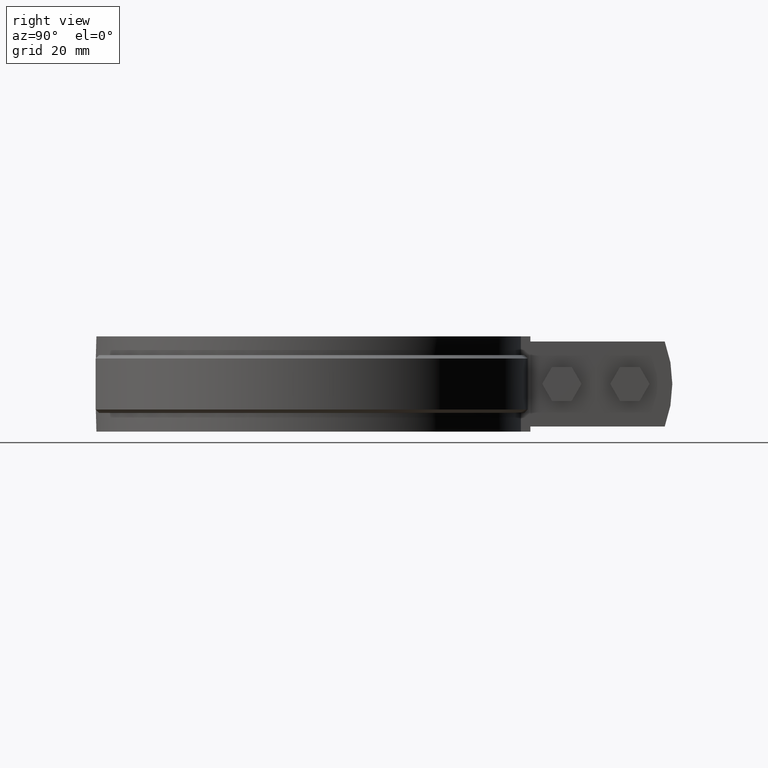
[diagram: clean part render]
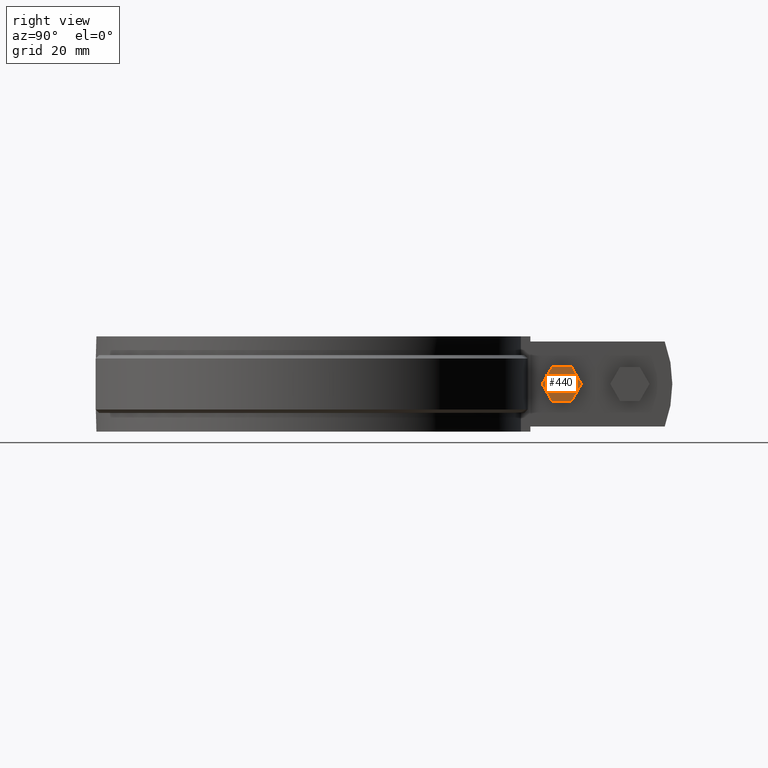
[diagram: same view with one face highlighted and labeled with its STEP entity id]
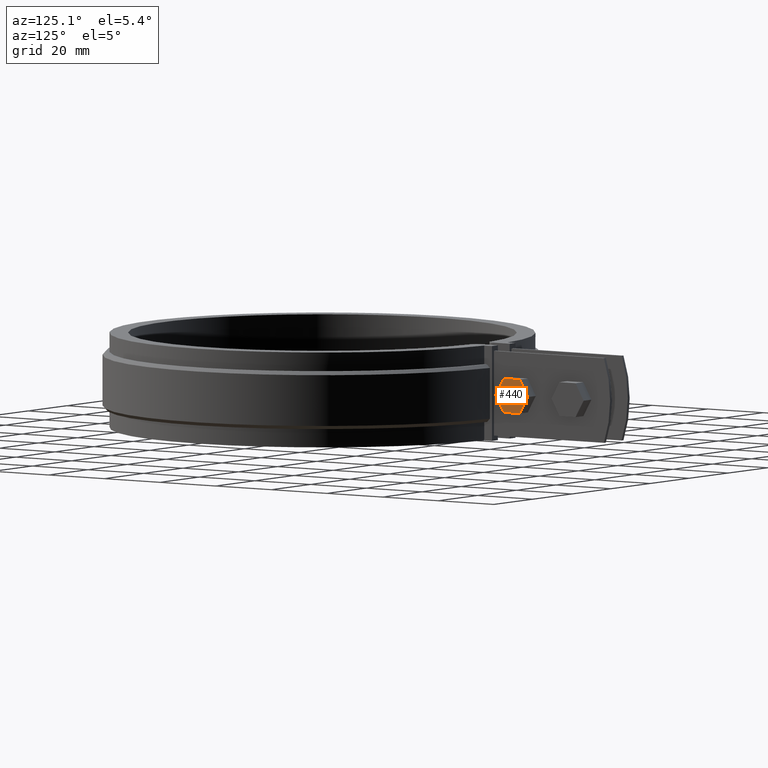
[diagram: same view with one face highlighted and labeled with its STEP entity id]
A machine part, right view. The second image highlights one B-rep face of the part: STEP entity #440.
A second angle (auxiliary view) of the same face is appended — the face is thin or edge-on in the first view.
In plain terms, the highlighted planar face has unit normal (-1, -0, 0).
Its self-contained STEP definition (entity closure, byte-faithful):
#440 = ADVANCED_FACE( '', ( #774 ), #775, .F. );
#774 = FACE_OUTER_BOUND( '', #1736, .T. );
#775 = PLANE( '', #1737 );
#1736 = EDGE_LOOP( '', ( #3415, #3416, #3417, #3418, #3419, #3420 ) );
#1737 = AXIS2_PLACEMENT_3D( '', #3421, #3422, #3423 );
#3415 = ORIENTED_EDGE( '', *, *, #4223, .T. );
#3416 = ORIENTED_EDGE( '', *, *, #4226, .T. );
#3417 = ORIENTED_EDGE( '', *, *, #4228, .T. );
#3418 = ORIENTED_EDGE( '', *, *, #4229, .T. );
#3419 = ORIENTED_EDGE( '', *, *, #4230, .T. );
#3420 = ORIENTED_EDGE( '', *, *, #4231, .T. );
#3421 = CARTESIAN_POINT( '', ( 9.00000000000001, 65.7415719270026, -5.00000000000000 ) );
#3422 = DIRECTION( '', ( -1.00000000000000, -1.36254714880468E-107, 0.000000000000000 ) );
#3423 = DIRECTION( '', ( -1.36254714880468E-107, 1.00000000000000, 0.000000000000000 ) );
#4223 = EDGE_CURVE( '', #4938, #4936, #4939, .T. );
#4226 = EDGE_CURVE( '', #4936, #4941, #4943, .T. );
#4228 = EDGE_CURVE( '', #4941, #4946, #4947, .T. );
#4229 = EDGE_CURVE( '', #4946, #4948, #4949, .T. );
#4230 = EDGE_CURVE( '', #4948, #4950, #4951, .T. );
#4231 = EDGE_CURVE( '', #4950, #4938, #4952, .T. );
#4936 = VERTEX_POINT( '', #7648 );
#4938 = VERTEX_POINT( '', #7651 );
#4939 = LINE( '', #7652, #7653 );
#4941 = VERTEX_POINT( '', #7656 );
#4943 = LINE( '', #7659, #7660 );
#4946 = VERTEX_POINT( '', #7663 );
#4947 = LINE( '', #7664, #7665 );
#4948 = VERTEX_POINT( '', #7666 );
#4949 = LINE( '', #7667, #7668 );
#4950 = VERTEX_POINT( '', #7669 );
#4951 = LINE( '', #7670, #7671 );
#4952 = LINE( '', #7672, #7673 );
#7648 = CARTESIAN_POINT( '', ( 9.00000000000001, 77.2885773107951, -5.00000000000000 ) );
#7651 = CARTESIAN_POINT( '', ( 9.00000000000001, 71.5150746188989, -5.00000000000000 ) );
#7652 = CARTESIAN_POINT( '', ( 9.00000000000001, 71.5150746188989, -5.00000000000000 ) );
#7653 = VECTOR( '', #8459, 1000.00000000000 );
#7656 = CARTESIAN_POINT( '', ( 9.00000000000001, 80.1753286567433, -1.73472347597681E-015 ) );
#7659 = CARTESIAN_POINT( '', ( 9.00000000000001, 77.2885773107951, -5.00000000000000 ) );
#7660 = VECTOR( '', #8462, 1000.00000000000 );
#7663 = CARTESIAN_POINT( '', ( 9.00000000000001, 77.2885773107951, 5.00000000000000 ) );
#7664 = CARTESIAN_POINT( '', ( 9.00000000000001, 80.1753286567433, -2.08823687999215E-015 ) );
#7665 = VECTOR( '', #8466, 1000.00000000000 );
#7666 = CARTESIAN_POINT( '', ( 9.00000000000001, 71.5150746188989, 5.00000000000000 ) );
#7667 = CARTESIAN_POINT( '', ( 9.00000000000001, 77.2885773107951, 5.00000000000000 ) );
#7668 = VECTOR( '', #8467, 1000.00000000000 );
#7669 = CARTESIAN_POINT( '', ( 9.00000000000001, 68.6283232729507, -1.73472347597681E-015 ) );
#7670 = CARTESIAN_POINT( '', ( 9.00000000000001, 71.5150746188989, 5.00000000000000 ) );
#7671 = VECTOR( '', #8468, 1000.00000000000 );
#7672 = CARTESIAN_POINT( '', ( 9.00000000000001, 68.6283232729507, -6.74183263930794E-016 ) );
#7673 = VECTOR( '', #8469, 1000.00000000000 );
#8459 = DIRECTION( '', ( -1.36254714880468E-107, 1.00000000000000, -3.00462919747432E-016 ) );
#8462 = DIRECTION( '', ( -6.81273574402339E-108, 0.500000000000000, 0.866025403784439 ) );
#8466 = DIRECTION( '', ( 6.81273574402339E-108, -0.500000000000000, 0.866025403784439 ) );
#8467 = DIRECTION( '', ( 1.36254714880468E-107, -1.00000000000000, 0.000000000000000 ) );
#8468 = DIRECTION( '', ( 6.81273574402339E-108, -0.500000000000000, -0.866025403784439 ) );
#8469 = DIRECTION( '', ( -6.81273574402339E-108, 0.500000000000000, -0.866025403784439 ) );